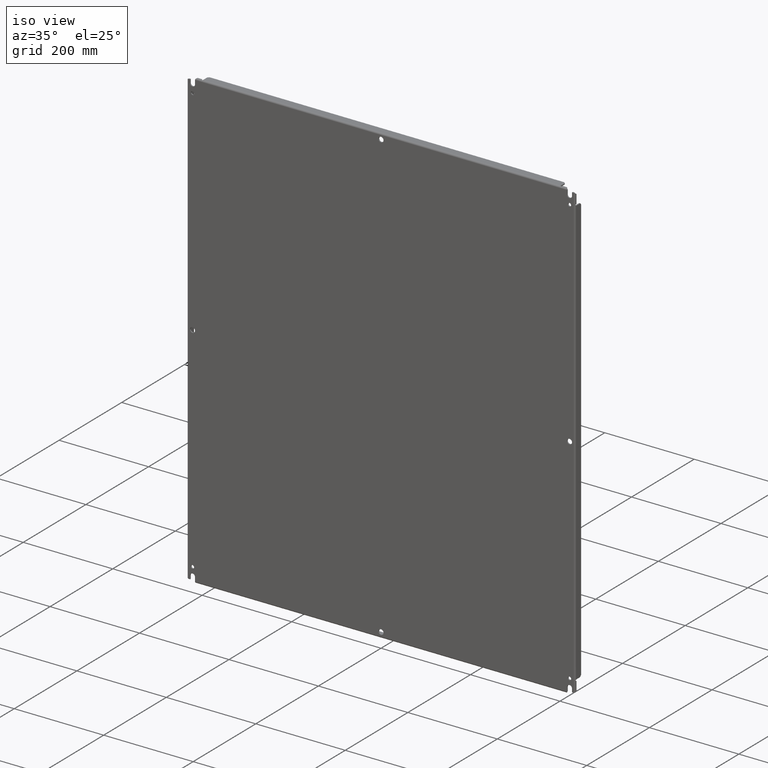
[diagram: clean part render]
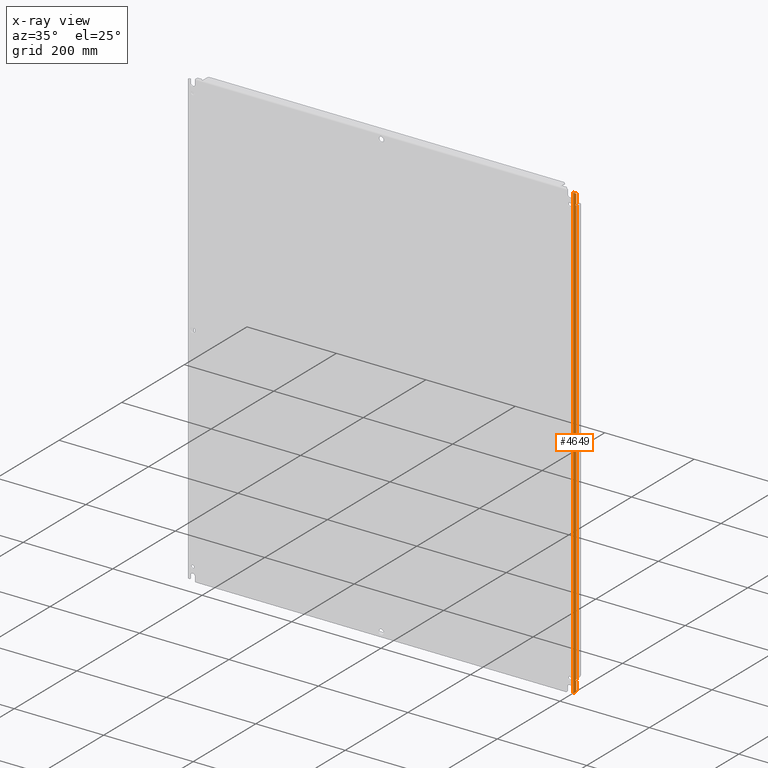
[diagram: x-ray — body ghosted, one internal face saturated and labeled with its STEP entity id]
A machine part, iso view, then the same camera in x-ray: the body is ghosted and one INTERNAL B-rep face — a face not visible from any outside direction — is saturated and labeled: STEP entity #4649.
In plain terms, the highlighted cylindrical surface (edge-blend (fillet) strip) has radius 3.6322 mm, axis along (-0, 0, -1).
Its self-contained STEP definition (entity closure, byte-faithful):
#23 = CARTESIAN_POINT ( 'NONE',  ( 17.07141308136902325, 0.08211775055548257984, 18.89414998659085398 ) ) ;
#62 = CARTESIAN_POINT ( 'NONE',  ( 17.06896792246424965, 0.07721134850412468553, -18.90906092963927421 ) ) ;
#78 = CARTESIAN_POINT ( 'NONE',  ( 16.94200000000000017, 0.1430000000000000160, -19.88800000000000168 ) ) ;
#143 = CARTESIAN_POINT ( 'NONE',  ( 17.08499999999999375, 0.1353164927475934143, -18.85851585838278766 ) ) ;
#188 = CARTESIAN_POINT ( 'NONE',  ( 17.07468827536491318, 0.08909815929284120584, 19.81925377783468534 ) ) ;
#206 = VECTOR ( 'NONE', #7672, 39.37007874015748143 ) ;
#220 = CARTESIAN_POINT ( 'NONE',  ( 16.94200000000000017, 0.0000000000000000000, 19.88800000000000168 ) ) ;
#378 = LINE ( 'NONE', #3371, #5585 ) ;
#400 = EDGE_CURVE ( 'NONE', #1854, #6101, #3364, .T. ) ;
#511 = EDGE_CURVE ( 'NONE', #3574, #2234, #1648, .T. ) ;
#551 = CARTESIAN_POINT ( 'NONE',  ( 17.08500000000000085, 0.1270760361535488436, -19.79915254319928408 ) ) ;
#640 = DIRECTION ( 'NONE',  ( -0.0000000000000000000, 0.0000000000000000000, -1.000000000000000000 ) ) ;
#646 = CARTESIAN_POINT ( 'NONE',  ( 17.06896792246424965, 0.07721134850412118833, 18.91693907036072986 ) ) ;
#671 = CARTESIAN_POINT ( 'NONE',  ( 17.07655484390020106, 0.09414802889302376077, 18.94672614191544113 ) ) ;
#710 = CARTESIAN_POINT ( 'NONE',  ( 17.08044249428121475, 0.1065967463646658731, -18.87051144091475052 ) ) ;
#761 = CARTESIAN_POINT ( 'NONE',  ( 17.06932660238706845, 0.07789378009992041496, -18.90507221604893573 ) ) ;
#788 = CARTESIAN_POINT ( 'NONE',  ( 17.03294937438599987, 0.03236757560071833184, 19.85562997660834839 ) ) ;
#815 = EDGE_CURVE ( 'NONE', #6101, #2291, #2848, .T. ) ;
#914 = ORIENTED_EDGE ( 'NONE', *, *, #6389, .T. ) ;
#959 = AXIS2_PLACEMENT_3D ( 'NONE', #1641, #1015, #1143 ) ;
#996 = VERTEX_POINT ( 'NONE', #220 ) ;
#1015 = DIRECTION ( 'NONE',  ( -0.0000000000000000000, 0.0000000000000000000, -1.000000000000000000 ) ) ;
#1063 = EDGE_CURVE ( 'NONE', #3482, #2046, #4010, .T. ) ;
#1139 = CARTESIAN_POINT ( 'NONE',  ( 17.02657643317756708, 0.02742139557041338438, -19.85974622216299323 ) ) ;
#1143 = DIRECTION ( 'NONE',  ( -1.000000000000000000, 0.0000000000000000000, 0.0000000000000000000 ) ) ;
#1167 = LINE ( 'NONE', #7617, #206 ) ;
#1187 = EDGE_CURVE ( 'NONE', #996, #1854, #1167, .T. ) ;
#1245 = CARTESIAN_POINT ( 'NONE',  ( 17.08500000000000796, 0.1353130993436306995, 18.85851672033026816 ) ) ;
#1296 = CARTESIAN_POINT ( 'NONE',  ( 17.08212127420392079, 0.1135443402664980256, 18.95910505093823062 ) ) ;
#1348 = CARTESIAN_POINT ( 'NONE',  ( 17.08044799292615679, 0.1066145063915962393, -18.95550092863428659 ) ) ;
#1376 = CARTESIAN_POINT ( 'NONE',  ( 17.07141995057842010, 0.08213241809899871071, -18.89412448890398366 ) ) ;
#1400 = CARTESIAN_POINT ( 'NONE',  ( 17.00700921290065892, 0.01466601449372613789, 19.87170454055195989 ) ) ;
#1415 = LINE ( 'NONE', #4831, #7104 ) ;
#1493 = CARTESIAN_POINT ( 'NONE',  ( 16.97680537239019927, 0.004300374720113945073, 19.88800000000000168 ) ) ;
#1641 = CARTESIAN_POINT ( 'NONE',  ( 16.94200000000000017, 0.1430000000000000160, -19.88800000000000168 ) ) ;
#1648 = B_SPLINE_CURVE_WITH_KNOTS ( 'NONE', 3,
 ( #1872, #1245, #2377, #5460, #4278, #3047, #2478, #23, #7300, #6098, #6747, #646, #2448, #6727, #3078, #7322, #671, #4904, #1296, #5507, #1896, #6128 ),
 .UNSPECIFIED., .F., .F.,
 ( 4, 2, 2, 2, 2, 2, 2, 2, 2, 2, 4 ),
 ( 1.673356382605556836E-16, 0.0005963793263619842754, 0.001192758652723801367, 0.001789137979085618241, 0.002087327642266526787, 0.002385517305447435333, 0.002683706968628343445, 0.002981896631809251991, 0.003578275958171243422, 0.004174655284533233986, 0.004771034610895226284 ),
 .UNSPECIFIED. ) ;
#1687 = ORIENTED_EDGE ( 'NONE', *, *, #400, .T. ) ;
#1744 = CARTESIAN_POINT ( 'NONE',  ( 17.07144197658935170, 0.08171299708498691583, -19.82337002339053456 ) ) ;
#1773 = CARTESIAN_POINT ( 'NONE',  ( 17.05951387629876947, 0.06113721677245467084, -19.83554172274720173 ) ) ;
#1785 = EDGE_CURVE ( 'NONE', #6002, #2695, #3548, .T. ) ;
#1833 = DIRECTION ( 'NONE',  ( -1.000000000000000000, 0.0000000000000000000, 0.0000000000000000000 ) ) ;
#1854 = VERTEX_POINT ( 'NONE', #4439 ) ;
#1872 = CARTESIAN_POINT ( 'NONE',  ( 17.08500000000000085, 0.1429999999999988503, 18.85656419576191922 ) ) ;
#1896 = CARTESIAN_POINT ( 'NONE',  ( 17.08499999999999730, 0.1353164927476004642, 18.96748414161722351 ) ) ;
#1953 = CARTESIAN_POINT ( 'NONE',  ( 17.07054725456003297, 0.08033844165037777596, -18.92832929678546705 ) ) ;
#2023 = CARTESIAN_POINT ( 'NONE',  ( 17.02674251644639725, 0.02754694328080696183, 19.85963989170873134 ) ) ;
#2046 = VERTEX_POINT ( 'NONE', #5972 ) ;
#2124 = CARTESIAN_POINT ( 'NONE',  ( 17.08500000000000085, 0.1429999999898305119, 19.79099999999999682 ) ) ;
#2220 = CARTESIAN_POINT ( 'NONE',  ( 17.08500000000000085, 0.1429999999999986560, -18.96943580423810261 ) ) ;
#2234 = VERTEX_POINT ( 'NONE', #2632 ) ;
#2278 = AXIS2_PLACEMENT_3D ( 'NONE', #78, #3631, #6066 ) ;
#2291 = VERTEX_POINT ( 'NONE', #7533 ) ;
#2377 = CARTESIAN_POINT ( 'NONE',  ( 17.08438206757837108, 0.1278734892559489911, 18.86091872101681588 ) ) ;
#2448 = CARTESIAN_POINT ( 'NONE',  ( 17.06932660238706490, 0.07789378009991357321, 18.92092778395107189 ) ) ;
#2478 = CARTESIAN_POINT ( 'NONE',  ( 17.07427630973402088, 0.08846970025260371406, 18.88457607200165711 ) ) ;
#2513 = CARTESIAN_POINT ( 'NONE',  ( 17.06896725049771746, 0.07721005166756360338, -18.91692738989150158 ) ) ;
#2570 = ORIENTED_EDGE ( 'NONE', *, *, #6414, .T. ) ;
#2632 = CARTESIAN_POINT ( 'NONE',  ( 17.08500000000000085, 0.1429999999999976568, 18.96943580423810261 ) ) ;
#2640 = CARTESIAN_POINT ( 'NONE',  ( 16.99225046203038403, 0.008176175360827573485, 19.87984745680042664 ) ) ;
#2695 = VERTEX_POINT ( 'NONE', #7671 ) ;
#2848 = B_SPLINE_CURVE_WITH_KNOTS ( 'NONE', 3,
 ( #5407, #4126, #3667, #1139, #7261, #7848, #4748, #1773, #5358, #1744, #6598, #3590, #551, #5994 ),
 .UNSPECIFIED., .F., .F.,
 ( 4, 2, 2, 2, 2, 2, 4 ),
 ( 2.710505431213761085E-19, 0.001343848358509981385, 0.002015772537764958308, 0.002687696717019935448, 0.003359620896274912154, 0.004031545075529888861, 0.005375393434039842273 ),
 .UNSPECIFIED. ) ;
#2956 = DIRECTION ( 'NONE',  ( 0.0000000000000000000, -0.0000000000000000000, 1.000000000000000000 ) ) ;
#3047 = CARTESIAN_POINT ( 'NONE',  ( 17.07654993878714933, 0.09413216944880764547, 18.87928488986931086 ) ) ;
#3078 = CARTESIAN_POINT ( 'NONE',  ( 17.07141995057842010, 0.08213241809899188284, 18.93187551109601685 ) ) ;
#3112 = CARTESIAN_POINT ( 'NONE',  ( 17.08212488382783434, 0.1135639434125907954, -18.95911389492289700 ) ) ;
#3134 = CARTESIAN_POINT ( 'NONE',  ( 17.08438206757837108, 0.1278734892559592051, -18.96508127898319174 ) ) ;
#3160 = CARTESIAN_POINT ( 'NONE',  ( 17.08212127420393145, 0.1135443402665103352, -18.86689494906176634 ) ) ;
#3181 = FACE_OUTER_BOUND ( 'NONE', #4880, .T. ) ;
#3321 = DIRECTION ( 'NONE',  ( 0.0000000000000000000, -0.0000000000000000000, 1.000000000000000000 ) ) ;
#3364 = CIRCLE ( 'NONE', #2278, 0.1429999999999989890 ) ;
#3371 = CARTESIAN_POINT ( 'NONE',  ( 17.08500000000000085, 0.1430000000000000437, -19.88800000000000168 ) ) ;
#3482 = VERTEX_POINT ( 'NONE', #2124 ) ;
#3548 = B_SPLINE_CURVE_WITH_KNOTS ( 'NONE', 3,
 ( #4394, #6159, #3134, #3112, #1348, #3711, #6241, #5591, #1953, #7363, #2513, #62, #761, #4916, #1376, #6814, #7387, #710, #3160, #3765, #143, #4365 ),
 .UNSPECIFIED., .F., .F.,
 ( 4, 2, 2, 2, 2, 2, 2, 2, 2, 2, 4 ),
 ( 5.421010862427521554E-17, 0.0005963793263625915371, 0.001192758652725128864, 0.001789137979087665866, 0.002087327642268935017, 0.002385517305450203952, 0.002683706968631472886, 0.002981896631812742254, 0.003578275958175105350, 0.004174655284537468446, 0.004771034610899831975 ),
 .UNSPECIFIED. ) ;
#3554 = EDGE_CURVE ( 'NONE', #2695, #3574, #378, .T. ) ;
#3574 = VERTEX_POINT ( 'NONE', #4584 ) ;
#3575 = CARTESIAN_POINT ( 'NONE',  ( 16.94200000000000017, 0.1430000000000000160, 19.88800000000000168 ) ) ;
#3590 = CARTESIAN_POINT ( 'NONE',  ( 17.08229752142812785, 0.1111815292794314791, -19.80729545944748438 ) ) ;
#3604 = CARTESIAN_POINT ( 'NONE',  ( 16.97680537240991328, 0.004300374725065489456, -19.88800000000000168 ) ) ;
#3631 = DIRECTION ( 'NONE',  ( 0.0000000000000000000, -0.0000000000000000000, 1.000000000000000000 ) ) ;
#3648 = CYLINDRICAL_SURFACE ( 'NONE', #959, 0.1429999999999989890 ) ;
#3667 = CARTESIAN_POINT ( 'NONE',  ( 17.00667830602283814, 0.01448515986962077909, -19.87189703125522300 ) ) ;
#3711 = CARTESIAN_POINT ( 'NONE',  ( 17.07654993878715288, 0.09413216944880888060, -18.94671511013068965 ) ) ;
#3765 = CARTESIAN_POINT ( 'NONE',  ( 17.08438253845440613, 0.1278731986808975540, -18.86091817406393290 ) ) ;
#3795 = EDGE_CURVE ( 'NONE', #2291, #6002, #1415, .T. ) ;
#4010 = B_SPLINE_CURVE_WITH_KNOTS ( 'NONE', 3,
 ( #5644, #7512, #5617, #188, #5117, #5713, #6889, #6348, #5073, #788, #2023, #1400, #2640, #1493 ),
 .UNSPECIFIED., .F., .F.,
 ( 4, 2, 2, 2, 2, 2, 4 ),
 ( 2.212927317158598215E-14, 0.001343848358577727107, 0.002015772537855526052, 0.002687696717133324347, 0.003359620896411122642, 0.004031545075688920503, 0.005375393434244489337 ),
 .UNSPECIFIED. ) ;
#4126 = CARTESIAN_POINT ( 'NONE',  ( 16.99225046248223236, 0.008176175476552334856, -19.87984746025713534 ) ) ;
#4230 = AXIS2_PLACEMENT_3D ( 'NONE', #3575, #640, #1833 ) ;
#4231 = DIRECTION ( 'NONE',  ( 0.0000000000000000000, -0.0000000000000000000, 1.000000000000000000 ) ) ;
#4278 = CARTESIAN_POINT ( 'NONE',  ( 17.08044799292615323, 0.1066145063916124763, 18.87049907136573168 ) ) ;
#4365 = CARTESIAN_POINT ( 'NONE',  ( 17.08500000000000085, 0.1429999999999984339, -18.85656419576191922 ) ) ;
#4394 = CARTESIAN_POINT ( 'NONE',  ( 17.08500000000000085, 0.1429999999999986560, -18.96943580423810261 ) ) ;
#4439 = CARTESIAN_POINT ( 'NONE',  ( 16.94200000000000017, 0.0000000000000000000, -19.88800000000000168 ) ) ;
#4476 = ORIENTED_EDGE ( 'NONE', *, *, #511, .T. ) ;
#4557 = ORIENTED_EDGE ( 'NONE', *, *, #1187, .T. ) ;
#4584 = CARTESIAN_POINT ( 'NONE',  ( 17.08500000000000085, 0.1429999999999988503, 18.85656419576191922 ) ) ;
#4628 = LINE ( 'NONE', #6039, #7595 ) ;
#4649 = ADVANCED_FACE ( 'NONE', ( #3181 ), #3648, .T. ) ;
#4748 = CARTESIAN_POINT ( 'NONE',  ( 17.04981326977933875, 0.04872738860087165447, -19.84360591204607971 ) ) ;
#4831 = CARTESIAN_POINT ( 'NONE',  ( 17.08500000000000085, 0.1430000000000000437, -19.88800000000000168 ) ) ;
#4880 = EDGE_LOOP ( 'NONE', ( #5182, #7252, #4476, #914, #6479, #2570, #4557, #1687, #6604, #6879 ) ) ;
#4904 = CARTESIAN_POINT ( 'NONE',  ( 17.08044249428121120, 0.1065967463646545071, 18.95548855908523578 ) ) ;
#4916 = CARTESIAN_POINT ( 'NONE',  ( 17.07055272970346493, 0.08034954724105686230, -18.89764293353618285 ) ) ;
#5015 = CIRCLE ( 'NONE', #4230, 0.1429999999999989890 ) ;
#5073 = CARTESIAN_POINT ( 'NONE',  ( 17.04457467916963864, 0.04305122700646438899, 19.84754680379115399 ) ) ;
#5117 = CARTESIAN_POINT ( 'NONE',  ( 17.07147158496610828, 0.08177932416479793964, 19.82333294895168763 ) ) ;
#5182 = ORIENTED_EDGE ( 'NONE', *, *, #1785, .T. ) ;
#5358 = CARTESIAN_POINT ( 'NONE',  ( 17.06390914173350026, 0.06783695594599015166, -19.83145319620748737 ) ) ;
#5407 = CARTESIAN_POINT ( 'NONE',  ( 16.97680537240991328, 0.004300374725065489456, -19.88800000000000168 ) ) ;
#5460 = CARTESIAN_POINT ( 'NONE',  ( 17.08212488382783079, 0.1135639434126014674, 18.86688610507711772 ) ) ;
#5507 = CARTESIAN_POINT ( 'NONE',  ( 17.08438253845440613, 0.1278731986808991916, 18.96508182593606762 ) ) ;
#5585 = VECTOR ( 'NONE', #3321, 39.37007874015748143 ) ;
#5591 = CARTESIAN_POINT ( 'NONE',  ( 17.07141308136900548, 0.08211775055547705648, -18.93185001340915363 ) ) ;
#5617 = CARTESIAN_POINT ( 'NONE',  ( 17.08239239647453545, 0.1115465039164673516, 19.80710296874202925 ) ) ;
#5644 = CARTESIAN_POINT ( 'NONE',  ( 17.08500000000000085, 0.1429999999898305119, 19.79099999999999682 ) ) ;
#5713 = CARTESIAN_POINT ( 'NONE',  ( 17.06397639765739527, 0.06794921134405874918, 19.83138626319614417 ) ) ;
#5972 = CARTESIAN_POINT ( 'NONE',  ( 16.97680537239019927, 0.004300374720113945073, 19.88800000000000168 ) ) ;
#5994 = CARTESIAN_POINT ( 'NONE',  ( 17.08500000000000085, 0.1429999999999976013, -19.79099999999999682 ) ) ;
#6002 = VERTEX_POINT ( 'NONE', #2220 ) ;
#6039 = CARTESIAN_POINT ( 'NONE',  ( 17.08500000000000085, 0.1430000000000000437, -19.88800000000000168 ) ) ;
#6066 = DIRECTION ( 'NONE',  ( -1.000000000000000000, -4.417761178565491950E-15, 0.0000000000000000000 ) ) ;
#6098 = CARTESIAN_POINT ( 'NONE',  ( 17.06932623271908511, 0.07789317999401250414, 18.90507988684234775 ) ) ;
#6101 = VERTEX_POINT ( 'NONE', #3604 ) ;
#6128 = CARTESIAN_POINT ( 'NONE',  ( 17.08500000000000085, 0.1429999999999976568, 18.96943580423810261 ) ) ;
#6159 = CARTESIAN_POINT ( 'NONE',  ( 17.08500000000000796, 0.1353130993436410245, -18.96748327966975012 ) ) ;
#6241 = CARTESIAN_POINT ( 'NONE',  ( 17.07427630973400667, 0.08846970025260030013, -18.94142392799835406 ) ) ;
#6348 = CARTESIAN_POINT ( 'NONE',  ( 17.05000315792939247, 0.04894499334003213353, 19.84345827725129396 ) ) ;
#6389 = EDGE_CURVE ( 'NONE', #2234, #3482, #4628, .T. ) ;
#6414 = EDGE_CURVE ( 'NONE', #2046, #996, #5015, .T. ) ;
#6479 = ORIENTED_EDGE ( 'NONE', *, *, #1063, .T. ) ;
#6598 = CARTESIAN_POINT ( 'NONE',  ( 17.07460692689979709, 0.08890651298297792826, -19.81936010829030081 ) ) ;
#6604 = ORIENTED_EDGE ( 'NONE', *, *, #815, .T. ) ;
#6727 = CARTESIAN_POINT ( 'NONE',  ( 17.07055272970345072, 0.08034954724104194368, 18.92835706646382121 ) ) ;
#6747 = CARTESIAN_POINT ( 'NONE',  ( 17.06896725049771746, 0.07721005166756665650, 18.90907261010850249 ) ) ;
#6814 = CARTESIAN_POINT ( 'NONE',  ( 17.07428046557443579, 0.08848006819340906159, -18.88456725729292174 ) ) ;
#6879 = ORIENTED_EDGE ( 'NONE', *, *, #3795, .T. ) ;
#6889 = CARTESIAN_POINT ( 'NONE',  ( 17.05967871943203207, 0.06137435823611509661, 19.83539408795214598 ) ) ;
#7104 = VECTOR ( 'NONE', #4231, 39.37007874015748143 ) ;
#7252 = ORIENTED_EDGE ( 'NONE', *, *, #3554, .T. ) ;
#7261 = CARTESIAN_POINT ( 'NONE',  ( 17.03289224843981842, 0.03232271399737161183, -19.85566705104612240 ) ) ;
#7300 = CARTESIAN_POINT ( 'NONE',  ( 17.07054725456003297, 0.08033844165038009355, 18.89767070321452991 ) ) ;
#7322 = CARTESIAN_POINT ( 'NONE',  ( 17.07428046557443224, 0.08848006819340351048, 18.94143274270707167 ) ) ;
#7363 = CARTESIAN_POINT ( 'NONE',  ( 17.06932623271907801, 0.07789317999400664772, -18.92092011315765276 ) ) ;
#7387 = CARTESIAN_POINT ( 'NONE',  ( 17.07655484390019041, 0.09414802889302648081, -18.87927385808455227 ) ) ;
#7512 = CARTESIAN_POINT ( 'NONE',  ( 17.08499999999854779, 0.1270760356932775503, 19.79915253973944189 ) ) ;
#7533 = CARTESIAN_POINT ( 'NONE',  ( 17.08500000000000085, 0.1429999999999976013, -19.79099999999999682 ) ) ;
#7595 = VECTOR ( 'NONE', #2956, 39.37007874015748143 ) ;
#7617 = CARTESIAN_POINT ( 'NONE',  ( 16.94200000000000017, 0.0000000000000000000, 20.66399999999999793 ) ) ;
#7671 = CARTESIAN_POINT ( 'NONE',  ( 17.08500000000000085, 0.1429999999999984339, -18.85656419576191922 ) ) ;
#7672 = DIRECTION ( 'NONE',  ( -0.0000000000000000000, 0.0000000000000000000, -1.000000000000000000 ) ) ;
#7848 = CARTESIAN_POINT ( 'NONE',  ( 17.04448216928111037, 0.04295867132634034746, -19.84761373680193230 ) ) ;